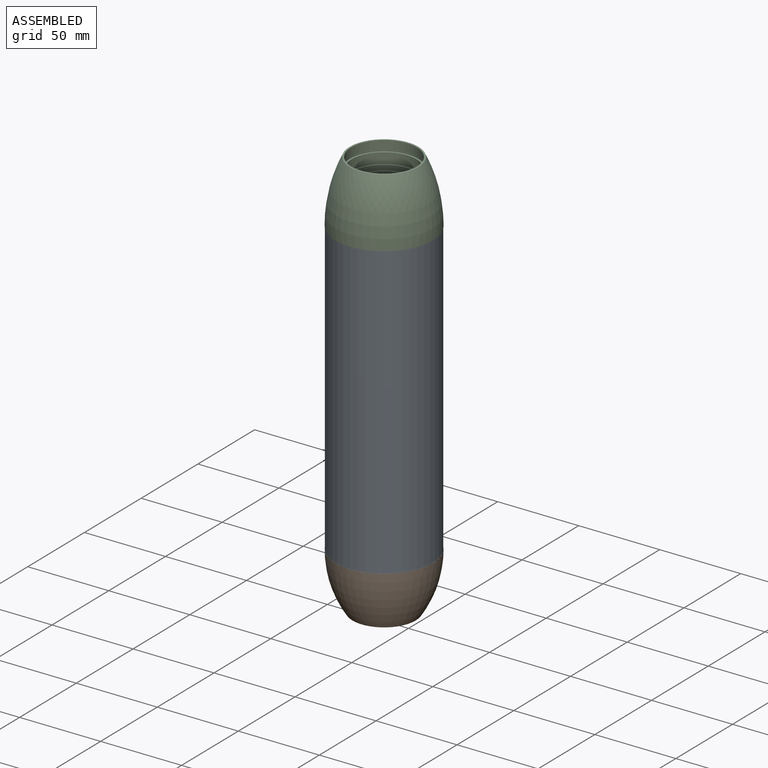
[diagram: assembled view]
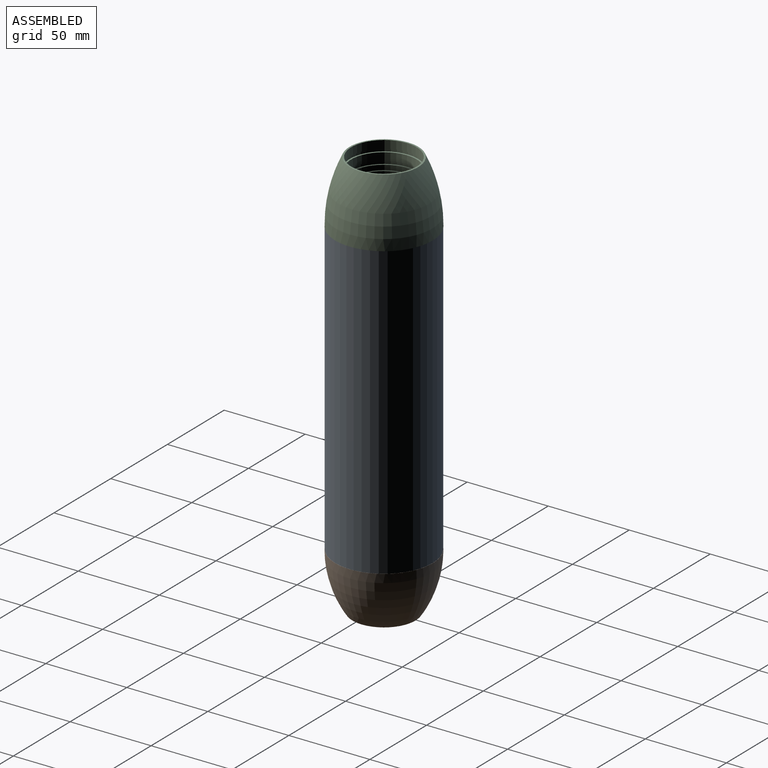
[diagram: assembled view, second angle]
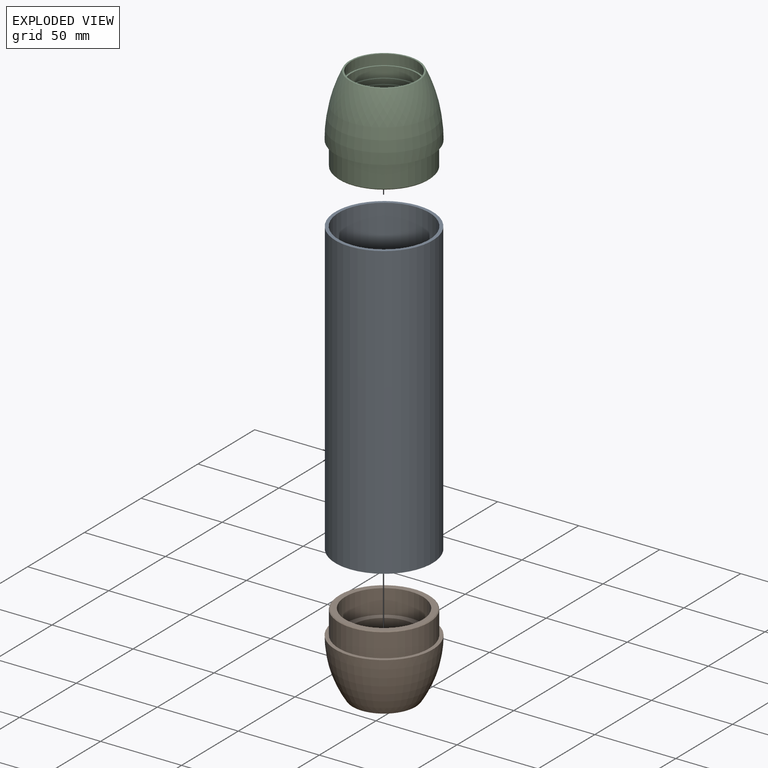
[diagram: exploded view]
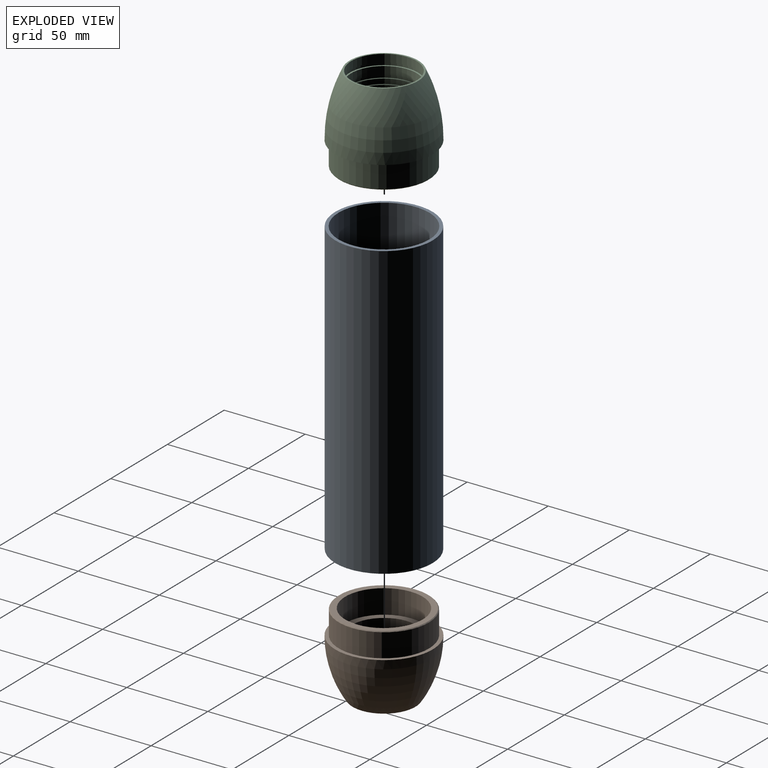
[diagram: exploded view, second angle]
ASSEMBLY  parts=3 mates=4
PART A: 4 faces, bbox 60x180x60 mm
  f0: cylinder r=28mm len=180mm, axis (0,1,0), area 31667.3mm2, adj f2,f3
  f1: cylinder r=30mm len=180mm, axis (0,1,0), area 33929.2mm2, adj f2,f3
  f2: plane 60x60mm, normal (0,-1,0), area 364.4mm2, adj f0,f1
  f3: plane 60x60mm, normal (0,1,0), area 364.4mm2, adj f0,f1
PART B: 12 faces, bbox 60.2x60.2x49.8 mm
  f0: cylinder r=18.5mm len=37mm, axis (0,0,-1), area 1720.3mm2, adj f1,f11
  f1: plane 40x40mm, normal (0,0,-1), area 181.4mm2, adj f0,f2
  f2: cylinder r=20mm len=40mm, axis (0,0,-1), area 2513.3mm2, adj f1,f3
  f3: plane 47.8x47.8mm, normal (0,0,-1), area 537.9mm2, adj f2,f4
  f4: cylinder r=23.9mm len=47.8mm, axis (0,0,-1), area 2222.5mm2, adj f3,f5
  f5: plane 54.8x54.8mm, normal (0,0,-1), area 564.1mm2, adj f4,f10
  f6: cylinder r=27.9mm len=55.8mm, axis (0,0,-1), area 2541.9mm2, adj f7,f10
  f7: plane 60.2x60.2mm, normal (0,0,-1), area 400.9mm2, adj f6,f8
  f8: revolved ~60.2x60.2mm, area 6152.1mm2, adj f7,f9
  f9: plane 39x39mm, normal (0,0,1), area 96mm2, adj f8,f11
  f10: cone r=27.4mm half-angle=45deg, axis (0,0,1), area 122.8mm2, adj f5,f6
  f11: cone r=18.7mm half-angle=45deg, axis (0,0,1), area 33.1mm2, adj f0,f9
PART C: 21 faces, bbox 60.2x60.2x53.6 mm
  f0: cylinder r=20.2mm len=40.4mm, axis (0,0,-1), area 380.8mm2, adj f1,f19
  f1: plane 40.4x40.4mm, normal (0,0,1), area 147.8mm2, adj f0,f2
  f2: cylinder r=19mm len=38mm, axis (0,0,-1), area 238.8mm2, adj f1,f3
  f3: plane 40.4x40.4mm, normal (0,0,-1), area 147.8mm2, adj f2,f4
  f4: cylinder r=20.2mm len=40.4mm, axis (0,0,-1), area 2538.4mm2, adj f3,f5
  f5: plane 47.8x47.8mm, normal (0,0,-1), area 512.6mm2, adj f4,f6
  f6: cylinder r=23.9mm len=47.8mm, axis (0,0,-1), area 2222.5mm2, adj f5,f7
  f7: plane 54.8x54.8mm, normal (0,0,-1), area 564.1mm2, adj f6,f20
  f8: cylinder r=27.9mm len=55.8mm, axis (0,0,-1), area 2541.9mm2, adj f9,f20
  f9: plane 60.2x60.2mm, normal (0,0,-1), area 400.9mm2, adj f8,f10
  f10: revolved ~60.2x60.2mm, area 6816.3mm2, adj f9,f11
  f11: plane 42.4x42.4mm, normal (0,0,1), area 130.1mm2, adj f10,f12
  f12: cylinder r=20.2mm len=40.4mm, axis (0,0,-1), area 609.2mm2, adj f11,f13
  f13: plane 42.4x42.4mm, normal (0,0,-1), area 130.1mm2, adj f12,f14
  f14: cylinder r=21.2mm len=42.4mm, axis (0,0,-1), area 266.4mm2, adj f13,f15
  f15: plane 42.4x42.4mm, normal (0,0,1), area 130.1mm2, adj f14,f16
  f16: cylinder r=20.2mm len=40.4mm, axis (0,0,-1), area 634.6mm2, adj f15,f17
  f17: plane 42.4x42.4mm, normal (0,0,-1), area 130.1mm2, adj f16,f18
  f18: cylinder r=21.2mm len=42.4mm, axis (0,0,-1), area 266.4mm2, adj f17,f19
  f19: plane 42.4x42.4mm, normal (0,0,1), area 130.1mm2, adj f0,f18
  f20: cone r=27.4mm half-angle=45deg, axis (0,0,1), area 122.8mm2, adj f7,f8
PLACE A rot(axis=(-1,0,0),90deg) t=(-7.81,-31.76,-166.07)mm
PLACE B rot(axis=(1,0,0),180deg) t=(-7.81,-31.76,-158.55)mm
PLACE C t=(-7.81,-31.76,-1.07)mm
MATE planar C.f0 <-> A.f1  axis (0,0,-1) through (-7.81,-31.76,13.93)mm
MATE cylindrical A.f0 <-> C.f0  axis (0,0,-1) through (-7.81,-31.76,-76.07)mm
MATE planar B.f0 <-> A.f1  axis (0,0,1) through (-7.81,-31.76,-166.07)mm
MATE cylindrical B.f0 <-> A.f1  axis (0,0,1) through (-7.81,-31.76,-158.82)mm
